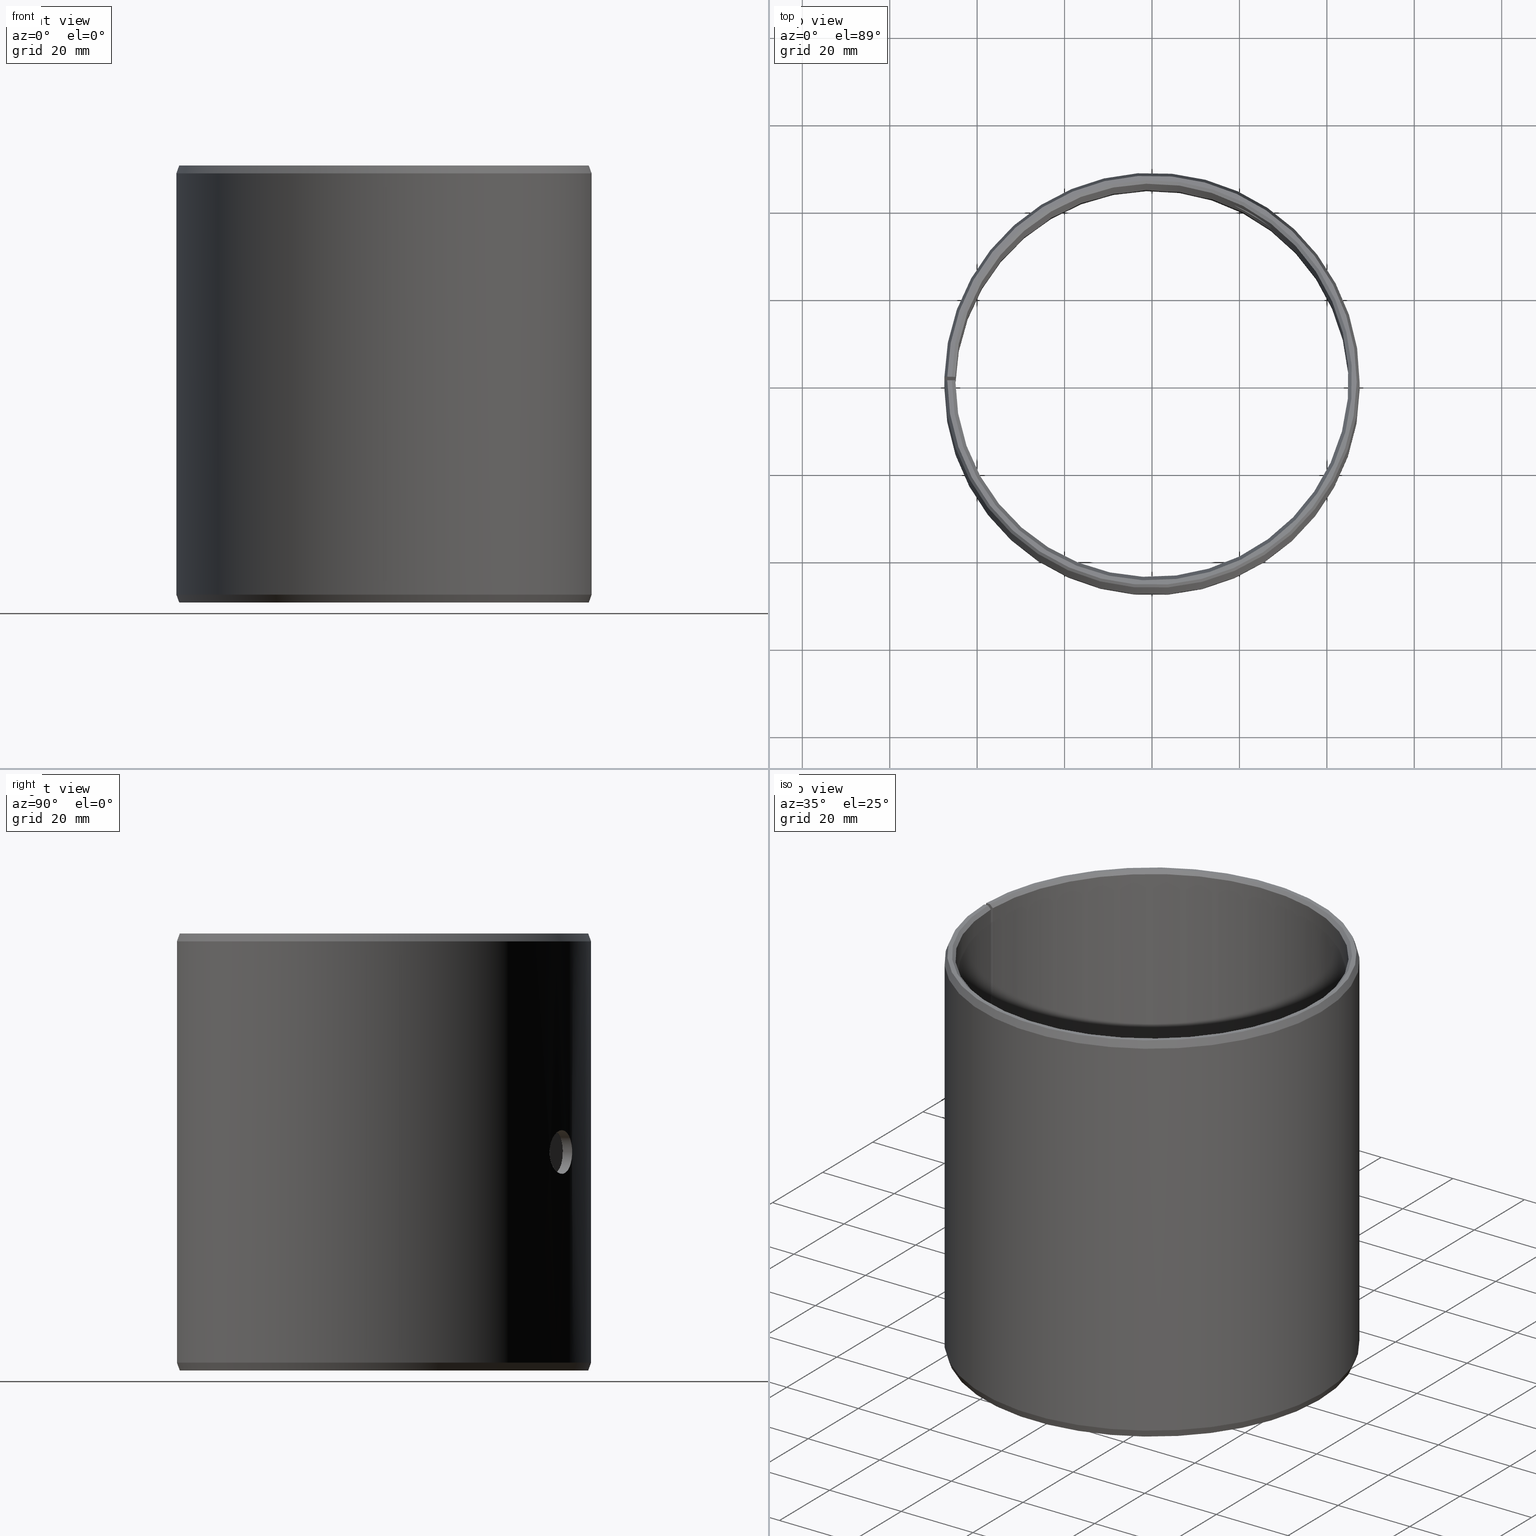
[diagram: canonical four-view strip — front | top / right | iso, engineering-drawing reading convention]
A machine part, canonical four-view strip (front | top / right | iso — engineering-drawing reading convention). The complete STEP part file that produces these views, byte-faithful:
ISO-10303-21;
HEADER;
FILE_DESCRIPTION(('STEP AP203'),'1');
FILE_NAME('440-POM90100LMB.stp','2016-09-21T01:37:38',(' '),(' '),'Spatial InterOp 3D',' ',' ');
FILE_SCHEMA(('CONFIG_CONTROL_DESIGN'));
ENDSEC;
DATA;
#1=DESIGN_CONTEXT('',#51,'design');
#2=APPLICATION_PROTOCOL_DEFINITION('INTERNATIONAL STANDARD','config_control_design',1994,#51);
#3=PRODUCT_CATEGORY_RELATIONSHIP('NONE','NONE',#52,#53);
#4=DATE_AND_TIME(#54,#55);
#5=DATE_TIME_ROLE('creation_date');
#6=DATE_TIME_ROLE('classification_date');
#7=PERSON_AND_ORGANIZATION_ROLE('creator');
#8=PERSON_AND_ORGANIZATION_ROLE('design_supplier');
#9=PERSON_AND_ORGANIZATION_ROLE('classification_officer');
#10=PERSON_AND_ORGANIZATION_ROLE('design_owner');
#11=APPROVAL_PERSON_ORGANIZATION(#56,#57,#58);
#12=APPROVAL_DATE_TIME(#4,#57);
#13=CC_DESIGN_APPROVAL(#57,(#59,#60,#61));
#14=CC_DESIGN_DATE_AND_TIME_ASSIGNMENT(#4,#5,(#61));
#15=CC_DESIGN_DATE_AND_TIME_ASSIGNMENT(#4,#6,(#59));
#16=CC_DESIGN_PERSON_AND_ORGANIZATION_ASSIGNMENT(#56,#10,(#62));
#17=CC_DESIGN_PERSON_AND_ORGANIZATION_ASSIGNMENT(#56,#7,(#61));
#18=CC_DESIGN_PERSON_AND_ORGANIZATION_ASSIGNMENT(#56,#7,(#60));
#19=CC_DESIGN_PERSON_AND_ORGANIZATION_ASSIGNMENT(#56,#8,(#60));
#20=CC_DESIGN_SECURITY_CLASSIFICATION(#59,(#60));
#21=CC_DESIGN_PERSON_AND_ORGANIZATION_ASSIGNMENT(#56,#9,(#59));
#22=SHAPE_DEFINITION_REPRESENTATION(#63,#64);
#23=DESIGN_CONTEXT('',#65,'design');
#24=APPLICATION_PROTOCOL_DEFINITION('INTERNATIONAL STANDARD','config_control_design',1994,#65);
#25=PRODUCT_CATEGORY_RELATIONSHIP('NONE','NONE',#66,#67);
#26=DATE_AND_TIME(#68,#69);
#27=DATE_TIME_ROLE('creation_date');
#28=DATE_TIME_ROLE('classification_date');
#29=PERSON_AND_ORGANIZATION_ROLE('creator');
#30=PERSON_AND_ORGANIZATION_ROLE('design_supplier');
#31=PERSON_AND_ORGANIZATION_ROLE('classification_officer');
#32=PERSON_AND_ORGANIZATION_ROLE('design_owner');
#33=APPROVAL_PERSON_ORGANIZATION(#70,#71,#72);
#34=APPROVAL_DATE_TIME(#26,#71);
#35=CC_DESIGN_APPROVAL(#71,(#73,#74,#75));
#36=CC_DESIGN_DATE_AND_TIME_ASSIGNMENT(#26,#27,(#75));
#37=CC_DESIGN_DATE_AND_TIME_ASSIGNMENT(#26,#28,(#73));
#38=CC_DESIGN_PERSON_AND_ORGANIZATION_ASSIGNMENT(#70,#32,(#76));
#39=CC_DESIGN_PERSON_AND_ORGANIZATION_ASSIGNMENT(#70,#29,(#75));
#40=CC_DESIGN_PERSON_AND_ORGANIZATION_ASSIGNMENT(#70,#29,(#74));
#41=CC_DESIGN_PERSON_AND_ORGANIZATION_ASSIGNMENT(#70,#30,(#74));
#42=CC_DESIGN_SECURITY_CLASSIFICATION(#73,(#74));
#43=CC_DESIGN_PERSON_AND_ORGANIZATION_ASSIGNMENT(#70,#31,(#73));
#44=CONTEXT_DEPENDENT_SHAPE_REPRESENTATION(#77,#78);
#45=SHAPE_DEFINITION_REPRESENTATION(#79,#80);
#46=SHAPE_REPRESENTATION_RELATIONSHIP('NONE','NONE',#80,#81);
#47= (GEOMETRIC_REPRESENTATION_CONTEXT(3)GLOBAL_UNCERTAINTY_ASSIGNED_CONTEXT((#84))GLOBAL_UNIT_ASSIGNED_CONTEXT((#86,#87,#88))REPRESENTATION_CONTEXT('NONE','WORKSPACE'));
#51=APPLICATION_CONTEXT('CONFIGURATION CONTROLLED 3D DESIGNS OF MECHANICAL PARTS AND ASSEMBLIES');
#52=PRODUCT_CATEGORY('part','NONE');
#53=PRODUCT_RELATED_PRODUCT_CATEGORY('detail',' ',(#62));
#54=CALENDAR_DATE(2016,21,8);
#55=LOCAL_TIME(3,37,38.0,#90);
#56=PERSON_AND_ORGANIZATION(#91,#92);
#57=APPROVAL(#93,'SOLID MODEL');
#58=APPROVAL_ROLE('APPROVED');
#59=SECURITY_CLASSIFICATION('','',#94);
#60=PRODUCT_DEFINITION_FORMATION_WITH_SPECIFIED_SOURCE(' ','NONE',#62,.NOT_KNOWN.);
#61=PRODUCT_DEFINITION('NONE','NONE',#60,#1);
#62=PRODUCT('','','PART--DESC',(#95));
#63=PRODUCT_DEFINITION_SHAPE('NONE','NONE',#61);
#64=SHAPE_REPRESENTATION('',(#96,#97),#98);
#65=APPLICATION_CONTEXT('CONFIGURATION CONTROLLED 3D DESIGNS OF MECHANICAL PARTS AND ASSEMBLIES');
#66=PRODUCT_CATEGORY('part','NONE');
#67=PRODUCT_RELATED_PRODUCT_CATEGORY('detail',' ',(#76));
#68=CALENDAR_DATE(2016,21,8);
#69=LOCAL_TIME(3,37,38.0,#99);
#70=PERSON_AND_ORGANIZATION(#100,#101);
#71=APPROVAL(#102,'SOLID MODEL');
#72=APPROVAL_ROLE('APPROVED');
#73=SECURITY_CLASSIFICATION('','',#103);
#74=PRODUCT_DEFINITION_FORMATION_WITH_SPECIFIED_SOURCE(' ','NONE',#76,.NOT_KNOWN.);
#75=PRODUCT_DEFINITION('440-POM90100LMB','440-POM90100LMB',#74,#23);
#76=PRODUCT('440-POM90100LMB','440-POM90100LMB','PART-440-POM90100LMB-DESC',(#104));
#77=(REPRESENTATION_RELATIONSHIP('','',#80,#64)REPRESENTATION_RELATIONSHIP_WITH_TRANSFORMATION(#107)SHAPE_REPRESENTATION_RELATIONSHIP());
#78=PRODUCT_DEFINITION_SHAPE('NAUO-PROD-DEF','NAUO-PROD-DEF',#109);
#79=PRODUCT_DEFINITION_SHAPE('NONE','NONE',#75);
#80=SHAPE_REPRESENTATION('440-POM90100LMB',(#96),#98);
#81=ADVANCED_BREP_SHAPE_REPRESENTATION('',(#110),#47);
#84=UNCERTAINTY_MEASURE_WITH_UNIT(LENGTH_MEASURE(1.0E-006),#86,'','');
#86= (CONVERSION_BASED_UNIT('METRE',#113)LENGTH_UNIT()NAMED_UNIT(#116));
#87= (NAMED_UNIT(#118)PLANE_ANGLE_UNIT()SI_UNIT($,.RADIAN.));
#88= (NAMED_UNIT(#118)SOLID_ANGLE_UNIT()SI_UNIT($,.STERADIAN.));
#90=COORDINATED_UNIVERSAL_TIME_OFFSET(1,0,.AHEAD.);
#91=PERSON('','UNSPECIFIED',$,$,$,$);
#92=ORGANIZATION('UNSPECIFIED','UNSPECIFIED','UNSPECIFIED');
#93=APPROVAL_STATUS('approved');
#94=SECURITY_CLASSIFICATION_LEVEL('unclassified');
#95=MECHANICAL_CONTEXT('',#51,'mechanical');
#96=AXIS2_PLACEMENT_3D('',#124,#125,#126);
#97=AXIS2_PLACEMENT_3D('',#127,#128,#129);
#98= (GEOMETRIC_REPRESENTATION_CONTEXT(3)GLOBAL_UNCERTAINTY_ASSIGNED_CONTEXT((#132))GLOBAL_UNIT_ASSIGNED_CONTEXT((#134,#135,#136))REPRESENTATION_CONTEXT('NONE','WORKSPACE'));
#99=COORDINATED_UNIVERSAL_TIME_OFFSET(1,0,.AHEAD.);
#100=PERSON('','UNSPECIFIED',$,$,$,$);
#101=ORGANIZATION('UNSPECIFIED','UNSPECIFIED','UNSPECIFIED');
#102=APPROVAL_STATUS('approved');
#103=SECURITY_CLASSIFICATION_LEVEL('unclassified');
#104=MECHANICAL_CONTEXT('',#65,'mechanical');
#107=ITEM_DEFINED_TRANSFORMATION('','',#96,#97);
#109=NEXT_ASSEMBLY_USAGE_OCCURRENCE('440-POM90100LMB','440-POM90100LMB','440-POM90100LMB',#61,#75,$);
#110=MANIFOLD_SOLID_BREP('',#138);
#113=LENGTH_MEASURE_WITH_UNIT(LENGTH_MEASURE(1.0),#139);
#116=DIMENSIONAL_EXPONENTS(1.0,0.0,0.0,0.0,0.0,0.0,0.0);
#118=DIMENSIONAL_EXPONENTS(0.0,0.0,0.0,0.0,0.0,0.0,0.0);
#124=CARTESIAN_POINT('',(0.0,0.0,0.0));
#125=DIRECTION('',(0.0,0.0,1.0));
#126=DIRECTION('',(1.0,0.0,0.0));
#127=CARTESIAN_POINT('',(0.0,0.0,0.0));
#128=DIRECTION('',(5.48707263966374E-016,-5.48707263966376E-016,1.0));
#129=DIRECTION('',(1.39349996950756E-015,1.0,5.48707263966375E-016));
#132=UNCERTAINTY_MEASURE_WITH_UNIT(LENGTH_MEASURE(1.0E-006),#134,'','');
#134= (CONVERSION_BASED_UNIT('METRE',#142)LENGTH_UNIT()NAMED_UNIT(#145));
#135= (NAMED_UNIT(#147)PLANE_ANGLE_UNIT()SI_UNIT($,.RADIAN.));
#136= (NAMED_UNIT(#147)SOLID_ANGLE_UNIT()SI_UNIT($,.STERADIAN.));
#138=CLOSED_SHELL('',(#153,#154,#155,#156,#157,#158,#159,#160,#161,#162,#163));
#139= (NAMED_UNIT(#116)LENGTH_UNIT()SI_UNIT($,.METRE.));
#142=LENGTH_MEASURE_WITH_UNIT(LENGTH_MEASURE(1.0),#165);
#145=DIMENSIONAL_EXPONENTS(1.0,0.0,0.0,0.0,0.0,0.0,0.0);
#147=DIMENSIONAL_EXPONENTS(0.0,0.0,0.0,0.0,0.0,0.0,0.0);
#153=ADVANCED_FACE('',(#166),#167,.F.);
#154=ADVANCED_FACE('',(#168),#169,.T.);
#155=ADVANCED_FACE('',(#170),#171,.T.);
#156=ADVANCED_FACE('',(#172),#173,.T.);
#157=ADVANCED_FACE('',(#174),#175,.T.);
#158=ADVANCED_FACE('',(#176),#177,.F.);
#159=ADVANCED_FACE('',(#178),#179,.T.);
#160=ADVANCED_FACE('',(#180),#181,.F.);
#161=ADVANCED_FACE('',(#182,#183),#184,.F.);
#162=ADVANCED_FACE('',(#185,#186),#187,.T.);
#163=ADVANCED_FACE('',(#188,#189),#190,.F.);
#165= (NAMED_UNIT(#145)LENGTH_UNIT()SI_UNIT($,.METRE.));
#166=FACE_OUTER_BOUND('',#192,.T.);
#167=CONICAL_SURFACE('',#193,0.045,0.785398163397455);
#168=FACE_OUTER_BOUND('',#194,.T.);
#169=PLANE('',#195);
#170=FACE_OUTER_BOUND('',#196,.T.);
#171=CONICAL_SURFACE('',#197,0.0468448535783209,0.349065850398864);
#172=FACE_OUTER_BOUND('',#198,.T.);
#173=CONICAL_SURFACE('',#199,0.0475,0.349065850398878);
#174=FACE_OUTER_BOUND('',#200,.T.);
#175=PLANE('',#201);
#176=FACE_OUTER_BOUND('',#202,.T.);
#177=CONICAL_SURFACE('',#203,0.0458,0.785398163397457);
#178=FACE_OUTER_BOUND('',#204,.T.);
#179=PLANE('',#205);
#180=FACE_OUTER_BOUND('',#206,.T.);
#181=PLANE('',#207);
#182=FACE_OUTER_BOUND('',#208,.T.);
#183=FACE_BOUND('',#209,.T.);
#184=CYLINDRICAL_SURFACE('',#210,0.045);
#185=FACE_OUTER_BOUND('',#211,.T.);
#186=FACE_BOUND('',#212,.T.);
#187=CYLINDRICAL_SURFACE('',#213,0.0475);
#188=FACE_OUTER_BOUND('',#214,.T.);
#189=FACE_OUTER_BOUND('',#215,.T.);
#190=CYLINDRICAL_SURFACE('',#216,0.005);
#192=EDGE_LOOP('',(#217,#218,#219,#220));
#193=AXIS2_PLACEMENT_3D('',#221,#222,#223);
#194=EDGE_LOOP('',(#224,#225,#226,#227));
#195=AXIS2_PLACEMENT_3D('',#228,#229,#230);
#196=EDGE_LOOP('',(#231,#232,#233,#234));
#197=AXIS2_PLACEMENT_3D('',#235,#236,#237);
#198=EDGE_LOOP('',(#238,#239,#240,#241));
#199=AXIS2_PLACEMENT_3D('',#242,#243,#244);
#200=EDGE_LOOP('',(#245,#246,#247,#248));
#201=AXIS2_PLACEMENT_3D('',#249,#250,#251);
#202=EDGE_LOOP('',(#252,#253,#254,#255));
#203=AXIS2_PLACEMENT_3D('',#256,#257,#258);
#204=EDGE_LOOP('',(#259,#260,#261,#262,#263,#264,#265,#266));
#205=AXIS2_PLACEMENT_3D('',#267,#268,#269);
#206=EDGE_LOOP('',(#270,#271,#272,#273,#274,#275,#276,#277));
#207=AXIS2_PLACEMENT_3D('',#278,#279,#280);
#208=EDGE_LOOP('',(#281,#282,#283,#284));
#209=EDGE_LOOP('',(#285));
#210=AXIS2_PLACEMENT_3D('',#286,#287,#288);
#211=EDGE_LOOP('',(#289,#290,#291,#292));
#212=EDGE_LOOP('',(#293));
#213=AXIS2_PLACEMENT_3D('',#294,#295,#296);
#214=EDGE_LOOP('',(#297));
#215=EDGE_LOOP('',(#298));
#216=AXIS2_PLACEMENT_3D('',#299,#300,#301);
#217=ORIENTED_EDGE('',*,*,#302,.T.);
#218=ORIENTED_EDGE('',*,*,#303,.F.);
#219=ORIENTED_EDGE('',*,*,#304,.F.);
#220=ORIENTED_EDGE('',*,*,#305,.T.);
#221=CARTESIAN_POINT('',(-6.93889390390723E-018,-6.93889390390723E-018,0.0008));
#222=DIRECTION('',(6.12323399573677E-017,-0.0,-1.0));
#223=DIRECTION('',(-1.0,0.0,-6.12323399573677E-017));
#224=ORIENTED_EDGE('',*,*,#306,.T.);
#225=ORIENTED_EDGE('',*,*,#307,.F.);
#226=ORIENTED_EDGE('',*,*,#302,.F.);
#227=ORIENTED_EDGE('',*,*,#308,.T.);
#228=CARTESIAN_POINT('',(0.00079932021482758,0.0457930244381627,2.00050815760302E-018));
#229=DIRECTION('',(6.12323399573677E-017,0.0,-1.0));
#230=DIRECTION('',(-1.0,0.0,-6.12323399573677E-017));
#231=ORIENTED_EDGE('',*,*,#309,.T.);
#232=ORIENTED_EDGE('',*,*,#310,.F.);
#233=ORIENTED_EDGE('',*,*,#306,.F.);
#234=ORIENTED_EDGE('',*,*,#311,.T.);
#235=CARTESIAN_POINT('',(-6.93889390390723E-018,-6.93889390390723E-018,-1.80555932286303E-035));
#236=DIRECTION('',(-6.12323399573677E-017,0.0,1.0));
#237=DIRECTION('',(1.0,0.0,6.12323399573677E-017));
#238=ORIENTED_EDGE('',*,*,#312,.T.);
#239=ORIENTED_EDGE('',*,*,#313,.F.);
#240=ORIENTED_EDGE('',*,*,#314,.F.);
#241=ORIENTED_EDGE('',*,*,#315,.T.);
#242=CARTESIAN_POINT('',(-1.21430643318376E-017,-6.93889390390723E-018,0.0982));
#243=DIRECTION('',(6.12323399573677E-017,-0.0,-1.0));
#244=DIRECTION('',(-1.0,0.0,-6.12323399573677E-017));
#245=ORIENTED_EDGE('',*,*,#316,.T.);
#246=ORIENTED_EDGE('',*,*,#317,.T.);
#247=ORIENTED_EDGE('',*,*,#318,.F.);
#248=ORIENTED_EDGE('',*,*,#312,.F.);
#249=CARTESIAN_POINT('',(0.000817555424143879,0.0468377188802227,0.1));
#250=DIRECTION('',(-6.12323399573677E-017,0.0,1.0));
#251=DIRECTION('',(1.0,0.0,6.12323399573677E-017));
#252=ORIENTED_EDGE('',*,*,#319,.T.);
#253=ORIENTED_EDGE('',*,*,#320,.F.);
#254=ORIENTED_EDGE('',*,*,#317,.F.);
#255=ORIENTED_EDGE('',*,*,#321,.T.);
#256=CARTESIAN_POINT('',(-1.38777878078145E-017,-6.93889390390723E-018,0.1));
#257=DIRECTION('',(-6.12323399573677E-017,0.0,1.0));
#258=DIRECTION('',(1.0,0.0,6.12323399573677E-017));
#259=ORIENTED_EDGE('',*,*,#320,.T.);
#260=ORIENTED_EDGE('',*,*,#322,.T.);
#261=ORIENTED_EDGE('',*,*,#303,.T.);
#262=ORIENTED_EDGE('',*,*,#307,.T.);
#263=ORIENTED_EDGE('',*,*,#310,.T.);
#264=ORIENTED_EDGE('',*,*,#323,.T.);
#265=ORIENTED_EDGE('',*,*,#313,.T.);
#266=ORIENTED_EDGE('',*,*,#318,.T.);
#267=CARTESIAN_POINT('',(-6.93889390390723E-018,-0.014,0.0));
#268=DIRECTION('',(1.0,0.0,0.0));
#269=DIRECTION('',(0.0,0.0,-1.0));
#270=ORIENTED_EDGE('',*,*,#321,.F.);
#271=ORIENTED_EDGE('',*,*,#316,.F.);
#272=ORIENTED_EDGE('',*,*,#315,.F.);
#273=ORIENTED_EDGE('',*,*,#324,.F.);
#274=ORIENTED_EDGE('',*,*,#311,.F.);
#275=ORIENTED_EDGE('',*,*,#308,.F.);
#276=ORIENTED_EDGE('',*,*,#305,.F.);
#277=ORIENTED_EDGE('',*,*,#325,.F.);
#278=CARTESIAN_POINT('',(-0.000244333690121977,-0.0139978677321895,-1.49611235765866E-020));
#279=DIRECTION('',(0.999847695156391,-0.0174524064372836,-9.3259819610035E-021));
#280=DIRECTION('',(9.32598196100733E-021,1.0686516840419E-018,-1.0));
#281=ORIENTED_EDGE('',*,*,#304,.T.);
#282=ORIENTED_EDGE('',*,*,#322,.F.);
#283=ORIENTED_EDGE('',*,*,#319,.F.);
#284=ORIENTED_EDGE('',*,*,#325,.T.);
#285=ORIENTED_EDGE('',*,*,#326,.T.);
#286=CARTESIAN_POINT('',(-6.93889390390723E-018,-6.93889390390723E-018,0.0));
#287=DIRECTION('',(6.12323399573677E-017,0.0,-1.0));
#288=DIRECTION('',(-1.0,0.0,-6.12323399573677E-017));
#289=ORIENTED_EDGE('',*,*,#314,.T.);
#290=ORIENTED_EDGE('',*,*,#323,.F.);
#291=ORIENTED_EDGE('',*,*,#309,.F.);
#292=ORIENTED_EDGE('',*,*,#324,.T.);
#293=ORIENTED_EDGE('',*,*,#327,.T.);
#294=CARTESIAN_POINT('',(-6.93889390390723E-018,-6.93889390390723E-018,0.0));
#295=DIRECTION('',(6.12323399573677E-017,0.0,-1.0));
#296=DIRECTION('',(-1.0,0.0,-6.12323399573677E-017));
#297=ORIENTED_EDGE('',*,*,#326,.F.);
#298=ORIENTED_EDGE('',*,*,#327,.F.);
#299=CARTESIAN_POINT('',(0.0364296102799162,-0.02188911818355,0.05));
#300=DIRECTION('',(0.857167300703911,-0.515038074907061,0.0));
#301=DIRECTION('',(-0.515038074907061,-0.857167300703911,0.0));
#302=EDGE_CURVE('',#328,#329,#330,.T.);
#303=EDGE_CURVE('',#331,#329,#332,.T.);
#304=EDGE_CURVE('',#333,#331,#334,.T.);
#305=EDGE_CURVE('',#333,#328,#335,.T.);
#306=EDGE_CURVE('',#336,#337,#338,.T.);
#307=EDGE_CURVE('',#329,#337,#339,.T.);
#308=EDGE_CURVE('',#328,#336,#340,.T.);
#309=EDGE_CURVE('',#341,#342,#343,.T.);
#310=EDGE_CURVE('',#337,#342,#344,.T.);
#311=EDGE_CURVE('',#336,#341,#345,.T.);
#312=EDGE_CURVE('',#346,#347,#348,.T.);
#313=EDGE_CURVE('',#349,#347,#350,.T.);
#314=EDGE_CURVE('',#351,#349,#352,.T.);
#315=EDGE_CURVE('',#351,#346,#353,.T.);
#316=EDGE_CURVE('',#346,#354,#355,.T.);
#317=EDGE_CURVE('',#354,#356,#357,.T.);
#318=EDGE_CURVE('',#347,#356,#358,.T.);
#319=EDGE_CURVE('',#359,#360,#361,.T.);
#320=EDGE_CURVE('',#356,#360,#362,.T.);
#321=EDGE_CURVE('',#354,#359,#363,.T.);
#322=EDGE_CURVE('',#360,#331,#364,.T.);
#323=EDGE_CURVE('',#342,#349,#365,.T.);
#324=EDGE_CURVE('',#341,#351,#366,.T.);
#325=EDGE_CURVE('',#359,#333,#367,.T.);
#326=EDGE_CURVE('',#368,#368,#369,.T.);
#327=EDGE_CURVE('',#370,#370,#371,.T.);
#328=VERTEX_POINT('',#372);
#329=VERTEX_POINT('',#373);
#330=CIRCLE('',#374,0.0458);
#331=VERTEX_POINT('',#375);
#332=LINE('',#376,#377);
#333=VERTEX_POINT('',#378);
#334=CIRCLE('',#379,0.045);
#335=LINE('',#380,#381);
#336=VERTEX_POINT('',#382);
#337=VERTEX_POINT('',#383);
#338=CIRCLE('',#384,0.0468448535783209);
#339=LINE('',#385,#386);
#340=LINE('',#387,#388);
#341=VERTEX_POINT('',#389);
#342=VERTEX_POINT('',#390);
#343=CIRCLE('',#391,0.0475);
#344=LINE('',#392,#393);
#345=LINE('',#394,#395);
#346=VERTEX_POINT('',#396);
#347=VERTEX_POINT('',#397);
#348=CIRCLE('',#398,0.0468448535783208);
#349=VERTEX_POINT('',#399);
#350=LINE('',#400,#401);
#351=VERTEX_POINT('',#402);
#352=CIRCLE('',#403,0.0475);
#353=LINE('',#404,#405);
#354=VERTEX_POINT('',#406);
#355=LINE('',#407,#408);
#356=VERTEX_POINT('',#409);
#357=CIRCLE('',#410,0.0458);
#358=LINE('',#411,#412);
#359=VERTEX_POINT('',#413);
#360=VERTEX_POINT('',#414);
#361=CIRCLE('',#415,0.045);
#362=LINE('',#416,#417);
#363=LINE('',#418,#419);
#364=LINE('',#420,#421);
#365=LINE('',#422,#423);
#366=LINE('',#424,#425);
#367=LINE('',#426,#427);
#368=VERTEX_POINT('',#428);
#369=B_SPLINE_CURVE_WITH_KNOTS('',3,(#429,#430,#431,#432,#433,#434,#435,#436,#437,#438,#439,#440,#441,#442,#443,#444,#445,#446,#447,#448,#449,#450,#451,#452,#453,#454,#455,#456,#457,#458,#459,#460,#461,#462,#463,#464,#465,#466,#467,#468,#469,#470,#471,#472,#473,#474,#475,#476,#477,#478,#479,#480,#481,#482,#483,#484,#485,#486,#487,#488,#489,#490,#491,#492,#493,#494,#495,#496,#497,#498,#499,#500,#501,#502,#503,#504),.UNSPECIFIED.,.T.,.F.,(2,2,2,2,2,2,2,2,2,2,2,2,2,2,2,2,2,2,2,2,2,2,2,2,2,2,2,2,2,2,2,2,2,2,2,2,2,2,2,2),(-0.000977655942804512,0.0,0.000977655942804524,0.00146648391420678,0.00195531188560903,0.00293296782841351,0.00391062377121799,0.00488827971402247,0.00586593565682695,0.00684359159963143,0.00782124754243591,0.00879890348524039,0.00977655942804487,0.0102653873994471,0.0107542153708493,0.0117318713136538,0.0127095272564583,0.0131983552278605,0.0136871831992628,0.0146648391420673,0.0156424950848717,0.0166201510276762,0.0175978069704807,0.0185754629132852,0.0195531188560896,0.0205307747988941,0.0215084307416986,0.0219972587131008,0.0224860866845031,0.0234637426273075,0.024441398570112,0.0249302265415143,0.0254190545129165,0.0263967104557211,0.0273743663985256,0.0283520223413301,0.0293296782841346,0.0303073342269391,0.0312849901697436,0.0322626461125481),.UNSPECIFIED.);
#370=VERTEX_POINT('',#505);
#371=B_SPLINE_CURVE_WITH_KNOTS('',3,(#506,#507,#508,#509,#510,#511,#512,#513,#514,#515,#516,#517,#518,#519,#520,#521,#522,#523,#524,#525,#526,#527,#528,#529,#530,#531,#532,#533,#534,#535,#536,#537,#538,#539,#540,#541,#542,#543,#544,#545,#546,#547,#548,#549,#550,#551,#552,#553,#554,#555,#556,#557,#558,#559,#560,#561,#562,#563,#564,#565,#566,#567,#568,#569,#570,#571,#572,#573,#574,#575,#576,#577,#578,#579,#580,#581),.UNSPECIFIED.,.T.,.F.,(2,2,2,2,2,2,2,2,2,2,2,2,2,2,2,2,2,2,2,2,2,2,2,2,2,2,2,2,2,2,2,2,2,2,2,2,2,2,2,2),(-0.000977578898854877,0.0,0.000977578898854921,0.00146636834828239,0.00195515779770986,0.00293273669656481,0.00391031559541975,0.00488789449427469,0.00586547339312963,0.00684305229198457,0.00782063119083951,0.00879821008969446,0.0097757889885494,0.0102645784379769,0.0107533678874043,0.0117309467862593,0.0127085256851142,0.0131973151345416,0.0136861045839691,0.014663683482824,0.0156412623816788,0.0166188412805337,0.0175964201793886,0.0185739990782435,0.0195515779770983,0.0205291568759532,0.0215067357748081,0.0219955252242355,0.022484314673663,0.0234618935725178,0.0244394724713727,0.0249282619208001,0.0254170513702276,0.0263946302690825,0.0273722091679373,0.0283497880667922,0.0293273669656471,0.030304945864502,0.0312825247633568,0.0322601036622118),.UNSPECIFIED.);
#372=CARTESIAN_POINT('',(0.00079932021482758,0.0457930244381627,3.95207206807693E-018));
#373=CARTESIAN_POINT('',(-6.93889390390723E-018,0.0458,3.90312782094781E-018));
#374=AXIS2_PLACEMENT_3D('',#582,#583,#584);
#375=CARTESIAN_POINT('',(-6.93889390390723E-018,0.045,0.0008));
#376=CARTESIAN_POINT('',(-6.93889390390723E-018,0.045,0.0008));
#377=VECTOR('',#585,1.0);
#378=CARTESIAN_POINT('',(0.000785358289677754,0.0449931462820376,0.0008));
#379=AXIS2_PLACEMENT_3D('',#586,#587,#588);
#380=CARTESIAN_POINT('',(0.000785358289677754,0.0449931462820376,0.0008));
#381=VECTOR('',#589,1.0);
#382=CARTESIAN_POINT('',(0.000817555424143886,0.0468377188802227,5.00608316651687E-020));
#383=CARTESIAN_POINT('',(-6.93889390390723E-018,0.0468448535783209,0.0));
#384=AXIS2_PLACEMENT_3D('',#590,#591,#592);
#385=CARTESIAN_POINT('',(-6.93889390390723E-018,0.0458,3.90312782094781E-018));
#386=VECTOR('',#593,1.0);
#387=CARTESIAN_POINT('',(0.00079932021482758,0.0457930244381627,3.95207206807693E-018));
#388=VECTOR('',#594,1.0);
#389=CARTESIAN_POINT('',(0.000828989305770963,0.0474927655199286,0.0018));
#390=CARTESIAN_POINT('',(-6.93889390390723E-018,0.0475,0.0018));
#391=AXIS2_PLACEMENT_3D('',#595,#596,#597);
#392=CARTESIAN_POINT('',(-6.93889390390723E-018,0.0468448535783209,0.0));
#393=VECTOR('',#598,1.0);
#394=CARTESIAN_POINT('',(0.000817555424143886,0.0468377188802227,5.00608316651687E-020));
#395=VECTOR('',#599,1.0);
#396=CARTESIAN_POINT('',(0.000817555424143879,0.0468377188802227,0.1));
#397=CARTESIAN_POINT('',(-1.38777878078145E-017,0.0468448535783208,0.1));
#398=AXIS2_PLACEMENT_3D('',#600,#601,#602);
#399=CARTESIAN_POINT('',(-1.21430643318376E-017,0.0475,0.0982));
#400=CARTESIAN_POINT('',(-1.21430643318376E-017,0.0475,0.0982));
#401=VECTOR('',#603,1.0);
#402=CARTESIAN_POINT('',(0.000828989305770958,0.0474927655199286,0.0982));
#403=AXIS2_PLACEMENT_3D('',#604,#605,#606);
#404=CARTESIAN_POINT('',(0.000828989305770958,0.0474927655199286,0.0982));
#405=VECTOR('',#607,1.0);
#406=CARTESIAN_POINT('',(0.000799320214827573,0.0457930244381627,0.1));
#407=CARTESIAN_POINT('',(0.000817555424143879,0.0468377188802227,0.1));
#408=VECTOR('',#608,1.0);
#409=CARTESIAN_POINT('',(-1.38777878078145E-017,0.0458,0.1));
#410=AXIS2_PLACEMENT_3D('',#609,#610,#611);
#411=CARTESIAN_POINT('',(-1.38777878078145E-017,0.0468448535783208,0.1));
#412=VECTOR('',#612,1.0);
#413=CARTESIAN_POINT('',(0.000785358289677747,0.0449931462820376,0.0992));
#414=CARTESIAN_POINT('',(-1.38777878078145E-017,0.045,0.0992));
#415=AXIS2_PLACEMENT_3D('',#613,#614,#615);
#416=CARTESIAN_POINT('',(-1.38777878078145E-017,0.0458,0.1));
#417=VECTOR('',#616,1.0);
#418=CARTESIAN_POINT('',(0.000799320214827573,0.0457930244381627,0.1));
#419=VECTOR('',#617,1.0);
#420=CARTESIAN_POINT('',(-1.38777878078145E-017,0.045,0.0992));
#421=VECTOR('',#618,1.0);
#422=CARTESIAN_POINT('',(-6.93889390390723E-018,0.0475,0.0018));
#423=VECTOR('',#619,1.0);
#424=CARTESIAN_POINT('',(0.000828989305770963,0.0474927655199286,0.0018));
#425=VECTOR('',#620,1.0);
#426=CARTESIAN_POINT('',(0.000785358289677747,0.0449931462820376,0.0992));
#427=VECTOR('',#621,1.0);
#428=CARTESIAN_POINT('',(0.0357584966747437,-0.0273190394333759,0.05));
#429=CARTESIAN_POINT('',(0.0357584966747437,-0.0273190394333759,0.0503305974411783));
#430=CARTESIAN_POINT('',(0.0357584966747437,-0.0273190394333759,0.0496694025588216));
#431=CARTESIAN_POINT('',(0.0357783577216167,-0.0272930982033185,0.0493443810431029));
#432=CARTESIAN_POINT('',(0.0358364374359816,-0.0272167370306392,0.0488648587049675));
#433=CARTESIAN_POINT('',(0.0358605423002432,-0.0271849922074838,0.0487063627733718));
#434=CARTESIAN_POINT('',(0.0359183471041453,-0.0271085712772662,0.0483921189122726));
#435=CARTESIAN_POINT('',(0.0359521978624818,-0.0270636924681726,0.0482359989971261));
#436=CARTESIAN_POINT('',(0.0360658270186019,-0.0269123028758919,0.0477819641588702));
#437=CARTESIAN_POINT('',(0.0361580810400802,-0.0267885492379145,0.0474948806336275));
#438=CARTESIAN_POINT('',(0.0363738130281186,-0.0264948848000638,0.0469515639383111));
#439=CARTESIAN_POINT('',(0.0364983073565944,-0.0263235066399123,0.0466945160926545));
#440=CARTESIAN_POINT('',(0.0367668328132445,-0.0259471279065885,0.0462336903275493));
#441=CARTESIAN_POINT('',(0.0369118630924153,-0.0257408100611493,0.0460268104903476));
#442=CARTESIAN_POINT('',(0.0372223004852439,-0.0252898257436383,0.0456612832928446));
#443=CARTESIAN_POINT('',(0.0373852337267297,-0.0250486510777766,0.0455061079599379));
#444=CARTESIAN_POINT('',(0.03771700621014,-0.0245462433818837,0.0452566610304996));
#445=CARTESIAN_POINT('',(0.0378882992403754,-0.0242812891842692,0.0451605416017369));
#446=CARTESIAN_POINT('',(0.0382327769748655,-0.0237351846120592,0.0450320027268189));
#447=CARTESIAN_POINT('',(0.0384030084960218,-0.0234588031910716,0.0450001803006492));
#448=CARTESIAN_POINT('',(0.0387392149597757,-0.0228993391390068,0.0449998212126562));
#449=CARTESIAN_POINT('',(0.0389068418490159,-0.0226132830493326,0.0450323313231987));
#450=CARTESIAN_POINT('',(0.0392252867047437,-0.0220562869917904,0.0451599796300221));
#451=CARTESIAN_POINT('',(0.0393771385892357,-0.0217837744276658,0.0452544240856155));
#452=CARTESIAN_POINT('',(0.0395945403336513,-0.0213844650088489,0.0454423251495541));
#453=CARTESIAN_POINT('',(0.0396656074970202,-0.021252307576708,0.0455131638464687));
#454=CARTESIAN_POINT('',(0.0398016465826718,-0.0209964264757305,0.0456678698631165));
#455=CARTESIAN_POINT('',(0.0398668505669601,-0.0208722932399154,0.0457518381889371));
#456=CARTESIAN_POINT('',(0.0400545085469077,-0.0205112150286391,0.0460231424210263));
#457=CARTESIAN_POINT('',(0.040169106483187,-0.0202854065421928,0.0462297573041049));
#458=CARTESIAN_POINT('',(0.0403780442743171,-0.0198662622257166,0.046696260202933));
#459=CARTESIAN_POINT('',(0.0404690038418624,-0.019679756093644,0.0469485311669764));
#460=CARTESIAN_POINT('',(0.0405873070276077,-0.0194339593549849,0.0473543953099624));
#461=CARTESIAN_POINT('',(0.0406236928824655,-0.0193577281014116,0.0474942937508464));
#462=CARTESIAN_POINT('',(0.0406904274462146,-0.0192170542722187,0.0477835410573333));
#463=CARTESIAN_POINT('',(0.0407208184453473,-0.0191525174882787,0.0479333644041079));
#464=CARTESIAN_POINT('',(0.0408011401875014,-0.0189811191290419,0.0483874062729034));
#465=CARTESIAN_POINT('',(0.0408411078497733,-0.0188946571153717,0.0486990546760645));
#466=CARTESIAN_POINT('',(0.0408950894334064,-0.0187775349324124,0.0493401628748444));
#467=CARTESIAN_POINT('',(0.0409088265291694,-0.0187474774842154,0.0496717260970863));
#468=CARTESIAN_POINT('',(0.0409089280301403,-0.0187472559976024,0.0503245650567024));
#469=CARTESIAN_POINT('',(0.0408957381163527,-0.0187761216132207,0.0506491604844053));
#470=CARTESIAN_POINT('',(0.0408418843576675,-0.018892978087921,0.0512946184872106));
#471=CARTESIAN_POINT('',(0.0408014160234292,-0.0189805192950226,0.0516102539686762));
#472=CARTESIAN_POINT('',(0.0406952128274478,-0.0192071683273303,0.0522121487394339));
#473=CARTESIAN_POINT('',(0.0406286680576426,-0.0193479954279689,0.0525030220510135));
#474=CARTESIAN_POINT('',(0.0404697095588895,-0.0196783181049076,0.0530497213449381));
#475=CARTESIAN_POINT('',(0.0403787620640096,-0.0198647657128848,0.0533014496601335));
#476=CARTESIAN_POINT('',(0.0401727303149316,-0.0202781922688756,0.0537628248130964));
#477=CARTESIAN_POINT('',(0.0400562119164868,-0.0205078972674864,0.0539740822081233));
#478=CARTESIAN_POINT('',(0.0398054117304022,-0.0209905493116648,0.0543372955111929));
#479=CARTESIAN_POINT('',(0.0396707614415069,-0.0212443494795505,0.0544911143776957));
#480=CARTESIAN_POINT('',(0.0394536382886212,-0.0216433211483405,0.0546797843869064));
#481=CARTESIAN_POINT('',(0.0393783028851212,-0.0217801277364787,0.0547358266868749));
#482=CARTESIAN_POINT('',(0.0392252028176919,-0.0220546631404928,0.0548313889731701));
#483=CARTESIAN_POINT('',(0.0391472783861288,-0.0221927047298193,0.0548711544147326));
#484=CARTESIAN_POINT('',(0.038909316820171,-0.0226090083296816,0.0549669428183051));
#485=CARTESIAN_POINT('',(0.0387451135674065,-0.0228894166698385,0.0549996895846428));
#486=CARTESIAN_POINT('',(0.0384047467854782,-0.0234560151172361,0.0550003060658118));
#487=CARTESIAN_POINT('',(0.0382340980950907,-0.0237330154768232,0.0549681228317207));
#488=CARTESIAN_POINT('',(0.0379782095291426,-0.0241387897615555,0.0548731865923983));
#489=CARTESIAN_POINT('',(0.0378929034281056,-0.0242724656329824,0.0548337061930671));
#490=CARTESIAN_POINT('',(0.0377223752722336,-0.0245366485473634,0.0547387302749971));
#491=CARTESIAN_POINT('',(0.0376369097083665,-0.0246675090020806,0.054682965725444));
#492=CARTESIAN_POINT('',(0.0373863784756464,-0.0250469677911234,0.0544950501512112));
#493=CARTESIAN_POINT('',(0.0372253539744323,-0.0252853155271545,0.0543416980306018));
#494=CARTESIAN_POINT('',(0.0369166043554603,-0.0257339946897475,0.0539793708688259));
#495=CARTESIAN_POINT('',(0.0367683225626511,-0.0259450183310532,0.0537685696625023));
#496=CARTESIAN_POINT('',(0.0364996200259119,-0.0263216879822304,0.0533080301658648));
#497=CARTESIAN_POINT('',(0.0363774616161313,-0.0264898859222839,0.0530566753315461));
#498=CARTESIAN_POINT('',(0.0361598994742772,-0.0267861053499551,0.0525106250876529));
#499=CARTESIAN_POINT('',(0.0360665119811126,-0.0269113823861815,0.0522200397058883));
#500=CARTESIAN_POINT('',(0.0359156632710771,-0.0271123757759739,0.0516187408305854));
#501=CARTESIAN_POINT('',(0.035857115664049,-0.0271895473920496,0.0513039864895104));
#502=CARTESIAN_POINT('',(0.0357783614476023,-0.0272930958898807,0.050657498365905));
#503=CARTESIAN_POINT('',(0.0357584966747437,-0.0273190394333759,0.0503305974411783));
#504=CARTESIAN_POINT('',(0.0357584966747437,-0.0273190394333759,0.0496694025588216));
#505=CARTESIAN_POINT('',(0.0379140577320904,-0.0286142311846347,0.05));
#506=CARTESIAN_POINT('',(0.0379140577320904,-0.0286142311846347,0.0496694306931599));
#507=CARTESIAN_POINT('',(0.0379140577320904,-0.0286142311846347,0.0503305693068401));
#508=CARTESIAN_POINT('',(0.0379337482737822,-0.0285881938327338,0.0506555684890789));
#509=CARTESIAN_POINT('',(0.0379913437643912,-0.0285115559055449,0.0511350644287005));
#510=CARTESIAN_POINT('',(0.0380152491140048,-0.0284796967504227,0.0512935527460611));
#511=CARTESIAN_POINT('',(0.0380725831443132,-0.0284030052092246,0.0516077834835698));
#512=CARTESIAN_POINT('',(0.0381061626143744,-0.0283579679692925,0.0517639036150756));
#513=CARTESIAN_POINT('',(0.038218902931078,-0.0282060519198823,0.0522179488174879));
#514=CARTESIAN_POINT('',(0.0383104579267354,-0.0280818799079132,0.0525050430645195));
#515=CARTESIAN_POINT('',(0.0385246598431271,-0.0277872947529977,0.0530483801986647));
#516=CARTESIAN_POINT('',(0.0386483271854155,-0.0276153983007897,0.0533054581723043));
#517=CARTESIAN_POINT('',(0.0389152291911593,-0.0272379946864986,0.0537663273363462));
#518=CARTESIAN_POINT('',(0.0390594513924601,-0.0270311703363561,0.0539732168034009));
#519=CARTESIAN_POINT('',(0.0393683626780023,-0.0265792575683808,0.0543387429609978));
#520=CARTESIAN_POINT('',(0.039530619824131,-0.0263376290648264,0.0544939346069049));
#521=CARTESIAN_POINT('',(0.0398612400292338,-0.0258345147383917,0.0547433725881275));
#522=CARTESIAN_POINT('',(0.0400320481937458,-0.0255693044946158,0.0548394761140137));
#523=CARTESIAN_POINT('',(0.0403758865713564,-0.0250228295462711,0.0549680041754136));
#524=CARTESIAN_POINT('',(0.0405459476166358,-0.0247463658294478,0.0549998203623692));
#525=CARTESIAN_POINT('',(0.0408821224801255,-0.0241869500230154,0.0550001781351254));
#526=CARTESIAN_POINT('',(0.041049896937971,-0.023901022220372,0.0549676749586588));
#527=CARTESIAN_POINT('',(0.0413689609290167,-0.0233444206064371,0.0548400389840388));
#528=CARTESIAN_POINT('',(0.0415212672041448,-0.0230721957047784,0.0547456032027471));
#529=CARTESIAN_POINT('',(0.041739530632651,-0.0226734325541013,0.0545577238790333));
#530=CARTESIAN_POINT('',(0.0418109210483792,-0.0225414701180167,0.0544868908736533));
#531=CARTESIAN_POINT('',(0.0419476617869625,-0.022285974616378,0.0543321763283563));
#532=CARTESIAN_POINT('',(0.0420132356238758,-0.0221620492494996,0.0542482036280141));
#533=CARTESIAN_POINT('',(0.0422020439502198,-0.0218016298592996,0.0539768889673421));
#534=CARTESIAN_POINT('',(0.0423174390156119,-0.0215763569175475,0.053770325036374));
#535=CARTESIAN_POINT('',(0.0425280907093809,-0.0211581266488341,0.0533037329538909));
#536=CARTESIAN_POINT('',(0.042619881371723,-0.0209720946961285,0.0530514266926122));
#537=CARTESIAN_POINT('',(0.042739332196068,-0.0207269810743129,0.0526455425622394));
#538=CARTESIAN_POINT('',(0.0427760841210189,-0.020650972882961,0.052505642973465));
#539=CARTESIAN_POINT('',(0.0428435076710601,-0.0205107265639491,0.0522164083311766));
#540=CARTESIAN_POINT('',(0.0428742272343621,-0.0204463839361678,0.0520665760236278));
#541=CARTESIAN_POINT('',(0.0429554374986243,-0.020275509792293,0.0516124939018336));
#542=CARTESIAN_POINT('',(0.0429958689324566,-0.0201893389224424,0.0513008440189622));
#543=CARTESIAN_POINT('',(0.0430504821382757,-0.0200726216285826,0.05065979623658));
#544=CARTESIAN_POINT('',(0.0430643872169361,-0.0200426683264596,0.0503282520212604));
#545=CARTESIAN_POINT('',(0.0430644894563511,-0.0200424486497659,0.0496754390335766));
#546=CARTESIAN_POINT('',(0.0430511377487938,-0.0200712149677724,0.0493508756254432));
#547=CARTESIAN_POINT('',(0.0429966580217803,-0.0201876578806514,0.0487055195104228));
#548=CARTESIAN_POINT('',(0.0429557127458464,-0.0202749201211607,0.0483898257485793));
#549=CARTESIAN_POINT('',(0.0428483448370668,-0.0205008533516763,0.0477879340983373));
#550=CARTESIAN_POINT('',(0.0427811170311331,-0.0206412112528463,0.0474971271372826));
#551=CARTESIAN_POINT('',(0.0426205927167167,-0.0209706617180261,0.046950313534283));
#552=CARTESIAN_POINT('',(0.0425288135853312,-0.0211566378453663,0.0466985588760719));
#553=CARTESIAN_POINT('',(0.0423211311995558,-0.0215690788835737,0.0462371769790789));
#554=CARTESIAN_POINT('',(0.0422037759896605,-0.0217982854809791,0.0460259127411306));
#555=CARTESIAN_POINT('',(0.0419514141150003,-0.0222800989999475,0.0456626505277647));
#556=CARTESIAN_POINT('',(0.0418160645343571,-0.0225334952713292,0.0455088383239124));
#557=CARTESIAN_POINT('',(0.0415980875404884,-0.0229318998023495,0.045320195654118));
#558=CARTESIAN_POINT('',(0.0415224938127193,-0.0230685329504931,0.0452641595044207));
#559=CARTESIAN_POINT('',(0.0413689181785099,-0.0233428214587494,0.0451685910710995));
#560=CARTESIAN_POINT('',(0.0412907955129448,-0.0234807528062265,0.045128827008201));
#561=CARTESIAN_POINT('',(0.0410523648297552,-0.0238967681421657,0.0450330476229891));
#562=CARTESIAN_POINT('',(0.0408880159591277,-0.0241770410918639,0.0450003137687369));
#563=CARTESIAN_POINT('',(0.040547733662697,-0.0247434932830945,0.0449996906768628));
#564=CARTESIAN_POINT('',(0.0403771917659523,-0.0250206843065067,0.045031875509787));
#565=CARTESIAN_POINT('',(0.0401217930542598,-0.025426704203037,0.0451267978873251));
#566=CARTESIAN_POINT('',(0.0400366911460185,-0.0255604786533397,0.0451662709035635));
#567=CARTESIAN_POINT('',(0.0398666495856282,-0.0258248902752023,0.0452612219504207));
#568=CARTESIAN_POINT('',(0.0397814444710016,-0.0259559174510112,0.0453169826305923));
#569=CARTESIAN_POINT('',(0.0395317519701923,-0.0263359542424335,0.0455049112930952));
#570=CARTESIAN_POINT('',(0.0393714118965852,-0.0265747257367032,0.0456582683202281));
#571=CARTESIAN_POINT('',(0.0390641993956006,-0.0270242936687033,0.0460205612086144));
#572=CARTESIAN_POINT('',(0.0389167250583702,-0.0272358589667871,0.0462313885870776));
#573=CARTESIAN_POINT('',(0.0386496290886614,-0.0276135777152544,0.0466919980102483));
#574=CARTESIAN_POINT('',(0.0385282936539394,-0.0277822662621697,0.0469433631529279));
#575=CARTESIAN_POINT('',(0.0383123046040156,-0.0280793704786166,0.0474893360700847));
#576=CARTESIAN_POINT('',(0.0382195817821018,-0.0282051296488352,0.0477800504634852));
#577=CARTESIAN_POINT('',(0.0380699127930543,-0.0284068215405316,0.0483813637928066));
#578=CARTESIAN_POINT('',(0.0380118654144432,-0.0284842467738041,0.0486959914817461));
#579=CARTESIAN_POINT('',(0.0379337519017797,-0.02858819149948,0.0493425300046267));
#580=CARTESIAN_POINT('',(0.0379140577320904,-0.0286142311846347,0.0496694306931599));
#581=CARTESIAN_POINT('',(0.0379140577320904,-0.0286142311846347,0.0503305693068401));
#582=CARTESIAN_POINT('',(-6.93889390390723E-018,-6.93889390390723E-018,3.90312782094781E-018));
#583=DIRECTION('',(6.12323399573677E-017,0.0,-1.0));
#584=DIRECTION('',(-1.0,0.0,-6.12323399573677E-017));
#585=DIRECTION('',(0.0,0.707106781186547,-0.707106781186548));
#586=CARTESIAN_POINT('',(-6.93889390390723E-018,-6.93889390390723E-018,0.0008));
#587=DIRECTION('',(6.12323399573677E-017,0.0,-1.0));
#588=DIRECTION('',(-1.0,0.0,-6.12323399573677E-017));
#589=DIRECTION('',(0.0123407149398269,0.706999085398824,-0.707106781186548));
#590=CARTESIAN_POINT('',(-6.93889390390723E-018,-6.93889390390723E-018,-1.80555932286303E-035));
#591=DIRECTION('',(6.12323399573677E-017,0.0,-1.0));
#592=DIRECTION('',(-1.0,0.0,-6.12323399573677E-017));
#593=DIRECTION('',(0.0,1.0,-3.73557396168408E-015));
#594=DIRECTION('',(0.0174524064372836,0.999847695156391,-3.73450531000003E-015));
#595=CARTESIAN_POINT('',(-6.93889390390723E-018,-6.93889390390723E-018,0.0018));
#596=DIRECTION('',(6.12323399573677E-017,0.0,-1.0));
#597=DIRECTION('',(-1.0,0.0,-6.12323399573677E-017));
#598=DIRECTION('',(0.0,0.342020143325664,0.93969262078591));
#599=DIRECTION('',(0.00596907455105746,0.341968052001224,0.93969262078591));
#600=CARTESIAN_POINT('',(-1.38777878078145E-017,-6.93889390390723E-018,0.1));
#601=DIRECTION('',(6.12323399573677E-017,0.0,-1.0));
#602=DIRECTION('',(-1.0,0.0,-6.12323399573677E-017));
#603=DIRECTION('',(-9.05614916377493E-016,-0.342020143325677,0.939692620785906));
#604=CARTESIAN_POINT('',(-1.21430643318376E-017,-6.93889390390723E-018,0.0982));
#605=DIRECTION('',(6.12323399573677E-017,0.0,-1.0));
#606=DIRECTION('',(-1.0,0.0,-6.12323399573677E-017));
#607=DIRECTION('',(-0.00596907455105859,-0.341968052001237,0.939692620785905));
#608=DIRECTION('',(-0.0174524064372836,-0.999847695156391,-1.0686516840419E-018));
#609=CARTESIAN_POINT('',(-1.38777878078145E-017,-6.93889390390723E-018,0.1));
#610=DIRECTION('',(6.12323399573677E-017,0.0,-1.0));
#611=DIRECTION('',(-1.0,0.0,-6.12323399573677E-017));
#612=DIRECTION('',(0.0,-1.0,0.0));
#613=CARTESIAN_POINT('',(-1.38777878078145E-017,-6.93889390390723E-018,0.0992));
#614=DIRECTION('',(6.12323399573677E-017,0.0,-1.0));
#615=DIRECTION('',(-1.0,0.0,-6.12323399573677E-017));
#616=DIRECTION('',(0.0,-0.707106781186551,-0.707106781186545));
#617=DIRECTION('',(-0.012340714939827,-0.706999085398827,-0.707106781186545));
#618=DIRECTION('',(7.05172144706019E-017,2.82068857882408E-016,-1.0));
#619=DIRECTION('',(-5.3985170414216E-017,0.0,1.0));
#620=DIRECTION('',(-5.39862741932399E-017,-1.26480548386986E-019,1.0));
#621=DIRECTION('',(7.54385806903054E-017,2.81863854025397E-016,-1.0));
ENDSEC;
END-ISO-10303-21;
